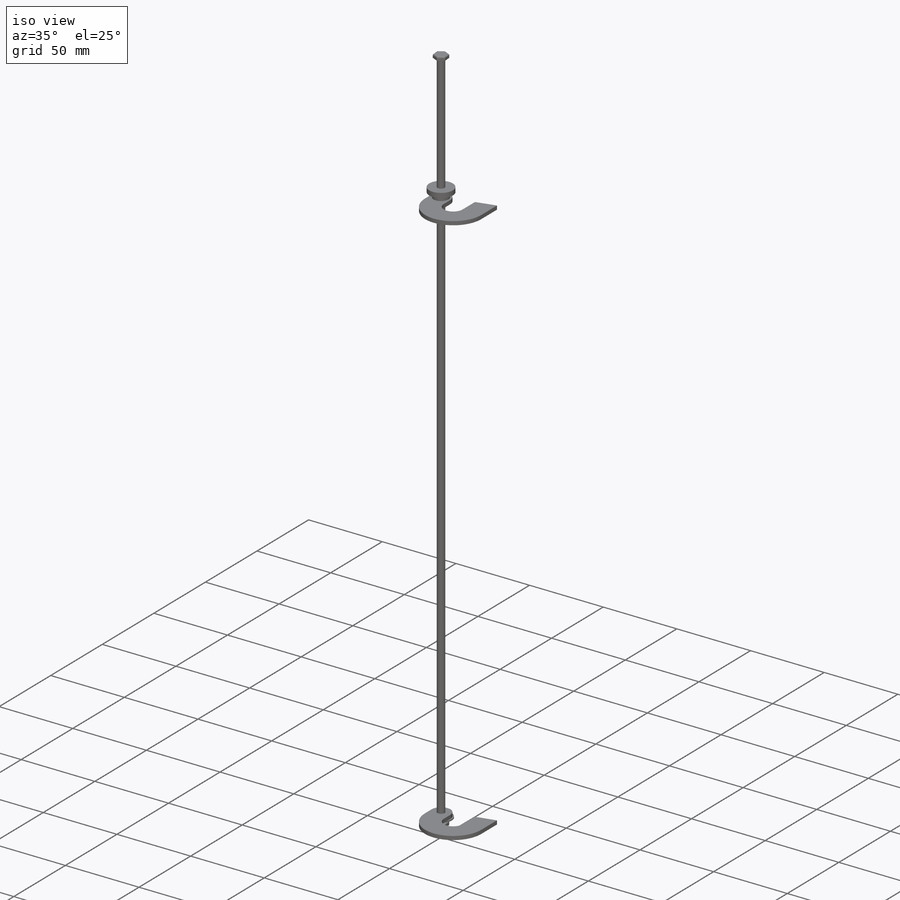
[diagram: iso view]
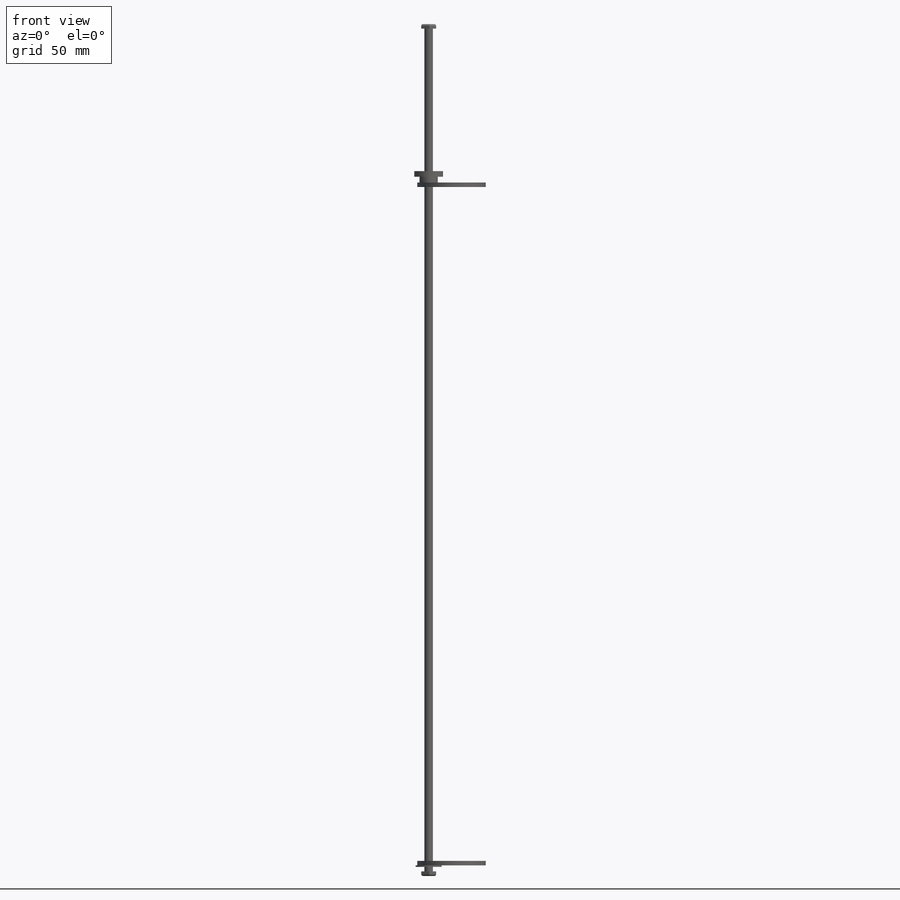
[diagram: front view]
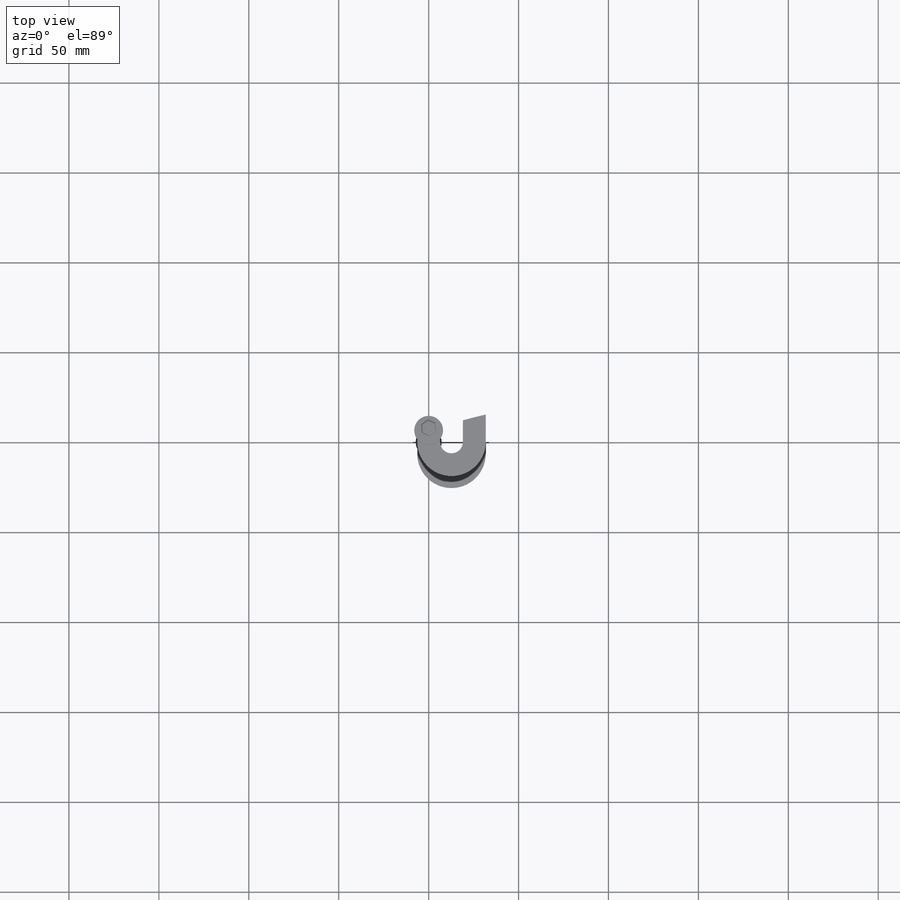
[diagram: top view]
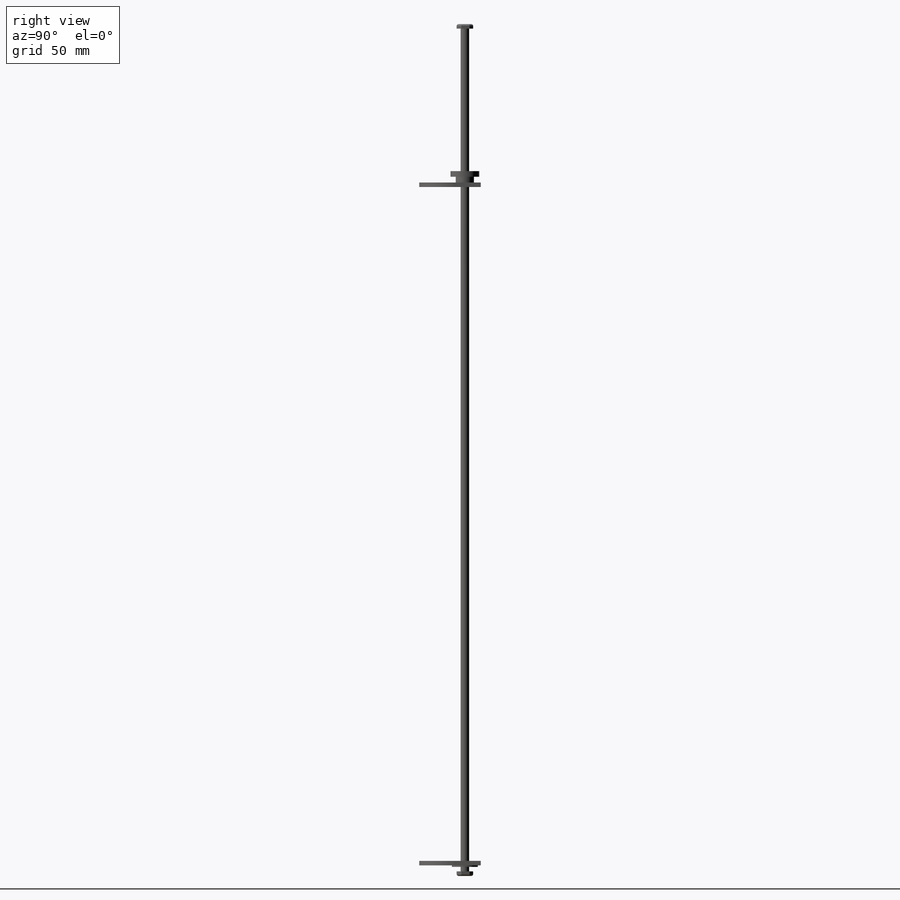
[diagram: right view]
SOLIDWORKS PART (.sldprt)
format: sldprt  version: not decoded by parser v0  size: 308,736 bytes
history: native  units: mm
features: sketch x8, extrude x7, material x1, fillet x1, mirror x1, plane x1, cut_extrude x1, move_body x1 (+12 scaffold rows collapsed)
feature tree (33):
  scaffold x12  (default folders/planes/origin — collapsed)
  material  "Material <not specified>"
  sketch  "Sketch1"  dims[D1=4.7625mm]
  extrude  "Boss-Extrude1"  Depth=473.71mm
  sketch  "Sketch2"  dims[D2=7.9375mm D1=0.0mm]
  extrude  "Boss-Extrude2"  Depth=2.54mm
  fillet  "Fillet1"  Radius=1mm
  mirror  "Mirror1"
  plane  "Plane1"  Offset=231.775mm
  sketch  "Sketch3"
  extrude  "Boss-Extrude3"  Depth=0.79375mm
  sketch  "Sketch4"  dims[D1=3.175mm D2=12.7mm D4=6.35mm D3=6.35mm]
  extrude  "Boss-Extrude4"  Depth=2.54mm
  sketch  "Sketch5"  dims[D1=0.0mm]
  cut_extrude  "Cut-Extrude1"  Depth=19.05mm
  sketch  "Sketch6"  dims[D1=1.524mm]
  extrude  "Boss-Extrude5"  Depth=6.35mm
  move_body  "Body-Move/Copy1"
  sketch  "Sketch7"  dims[D1=10.16mm D2=4.7625mm]
  extrude  "Boss-Extrude6"  Depth=3.175mm
  sketch  "Sketch8"  dims[D1=16.0mm]
  extrude  "Boss-Extrude7"  Depth=3.175mm
decode coverage: 16 of 19 modeling features carry decoded parameters
note: suppression state not decoded; provenance and decode notes live in map.json
